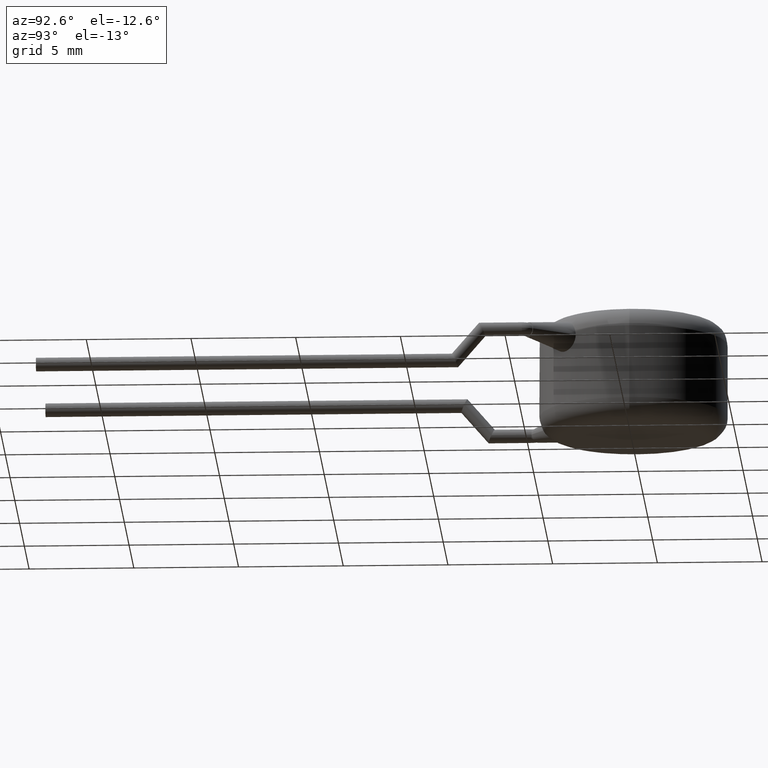
[diagram: clean part render]
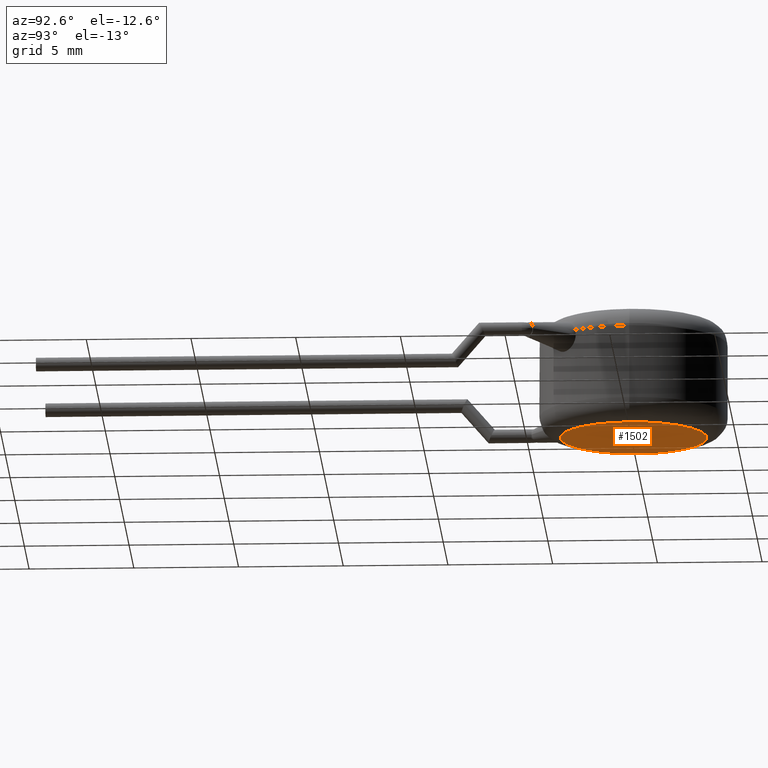
[diagram: same view with one face highlighted and labeled with its STEP entity id]
A machine part, auxiliary view. The second image highlights one B-rep face of the part: STEP entity #1502.
In plain terms, the highlighted planar face has unit normal (0, 0, 1).
Its self-contained STEP definition (entity closure, byte-faithful):
#82 = ORIENTED_EDGE ( 'NONE', *, *, #2315, .T. ) ;
#87 = AXIS2_PLACEMENT_3D ( 'NONE', #1268, #3563, #312 ) ;
#163 = FACE_OUTER_BOUND ( 'NONE', #986, .T. ) ;
#312 = DIRECTION ( 'NONE',  ( 1.000000000000000000, 0.0000000000000000000, -0.0000000000000000000 ) ) ;
#323 = VERTEX_POINT ( 'NONE', #3077 ) ;
#959 = ORIENTED_EDGE ( 'NONE', *, *, #1483, .T. ) ;
#961 = VERTEX_POINT ( 'NONE', #3290 ) ;
#986 = EDGE_LOOP ( 'NONE', ( #82, #959 ) ) ;
#1027 = CARTESIAN_POINT ( 'NONE',  ( 0.0000000000000000000, 0.0000000000000000000, 0.0000000000000000000 ) ) ;
#1268 = CARTESIAN_POINT ( 'NONE',  ( 0.0000000000000000000, 0.0000000000000000000, 0.0000000000000000000 ) ) ;
#1483 = EDGE_CURVE ( 'NONE', #961, #323, #2550, .T. ) ;
#1502 = ADVANCED_FACE ( 'NONE', ( #163 ), #2287, .F. ) ;
#1602 = DIRECTION ( 'NONE',  ( -0.0000000000000000000, -0.0000000000000000000, -1.000000000000000000 ) ) ;
#1868 = AXIS2_PLACEMENT_3D ( 'NONE', #1027, #2393, #3391 ) ;
#1972 = DIRECTION ( 'NONE',  ( 1.000000000000000000, 0.0000000000000000000, 0.0000000000000000000 ) ) ;
#2287 = PLANE ( 'NONE',  #87 ) ;
#2315 = EDGE_CURVE ( 'NONE', #323, #961, #3934, .T. ) ;
#2393 = DIRECTION ( 'NONE',  ( -0.0000000000000000000, -0.0000000000000000000, -1.000000000000000000 ) ) ;
#2550 = CIRCLE ( 'NONE', #3267, 3.499999999999999600 ) ;
#2945 = CARTESIAN_POINT ( 'NONE',  ( 0.0000000000000000000, 0.0000000000000000000, 0.0000000000000000000 ) ) ;
#3077 = CARTESIAN_POINT ( 'NONE',  ( 3.499999999999999600, 0.0000000000000000000, 0.0000000000000000000 ) ) ;
#3267 = AXIS2_PLACEMENT_3D ( 'NONE', #2945, #1602, #1972 ) ;
#3290 = CARTESIAN_POINT ( 'NONE',  ( -3.499999999999999600, 4.898587196589412800E-016, 0.0000000000000000000 ) ) ;
#3391 = DIRECTION ( 'NONE',  ( 1.000000000000000000, 0.0000000000000000000, 0.0000000000000000000 ) ) ;
#3563 = DIRECTION ( 'NONE',  ( 0.0000000000000000000, 0.0000000000000000000, 1.000000000000000000 ) ) ;
#3934 = CIRCLE ( 'NONE', #1868, 3.499999999999999600 ) ;